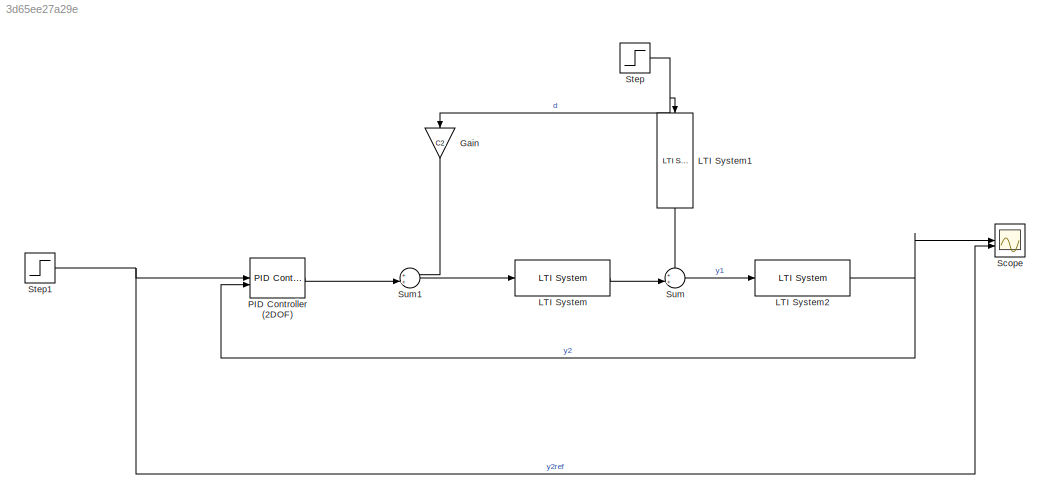
MODEL slx_3d65ee27a29e
KIND model
CONFIG AbsTol = auto
CONFIG EnableMultiTasking = off
CONFIG FixedStep = auto
CONFIG MaxStep = auto
CONFIG MinStep = auto
CONFIG RelTol = 1e-3
CONFIG SampleTimeConstraint = Unconstrained
CONFIG SolverName = VariableStepAuto
CONFIG StartTime = 0.0
CONFIG StopTime = 200
BLOCK [Gain] Gain
  Gain = C2
  NameLocation = left
BLOCK [Reference] LTI System  REF=cstblocks/LTI System
  SourceBlock = cstblocks/LTI System
  SourceType = LTI Block
BLOCK [Reference] LTI System1  REF=cstblocks/LTI System
  NameLocation = left
  SourceBlock = cstblocks/LTI System
  SourceType = LTI Block
BLOCK [Reference] LTI System2  REF=cstblocks/LTI System
  SourceBlock = cstblocks/LTI System
  SourceType = LTI Block
BLOCK [Reference] PID Controller (2DOF)  REF=slpidlib/PID Controller (2DOF)
  LibrarySourceBlock = simulink/Continuous/PID Controller (2DOF)
  SourceBlock = slpidlib/PID Controller (2DOF)
  SourceType = PID 2dof
BLOCK [Scope] Scope
  Floating = off
  NumInputPorts = 2
  ScopeSpecificationString = Simulink.scopes.TimeScopeBlockCfg('CurrentConfiguration', extmgr.ConfigurationSet(extmgr.Configuration('Core','General UI',true),extmgr.Configuration('Core','Source UI',true),extmgr.Configuration('Sources','WiredSimulink',true),extmgr.Configuration('Visuals','Time Domain',true,'SerializedDisplays',{struct('MinYLimReal','-2.01186','MaxYLimReal','7.21638','YLabelReal','','MinYLimMag','0.00000','MaxY...<+1763ch>
BLOCK [Step] Step
  SampleTime = 0
  Time = 75
BLOCK [Step] Step1
  SampleTime = 0
BLOCK [Sum] Sum
  Inputs = ++|
BLOCK [Sum] Sum1
  Inputs = ++|
LINE Gain:1 -> Sum1:1
LINE LTI System1:1 -> Sum:1
NET LTI System2:1 -> PID Controller (2DOF):2, Scope:1
LINE LTI System:1 -> Sum:2
LINE PID Controller (2DOF):1 -> Sum1:2
NET Step1:1 -> PID Controller (2DOF):1, Scope:2
NET Step:1 -> Gain:1, LTI System1:1
LINE Sum1:1 -> LTI System:1
LINE Sum:1 -> LTI System2:1
note: NET lines group one-source signal fan-out (src -> all destinations, sorted); 1:1 wires keep LINE
